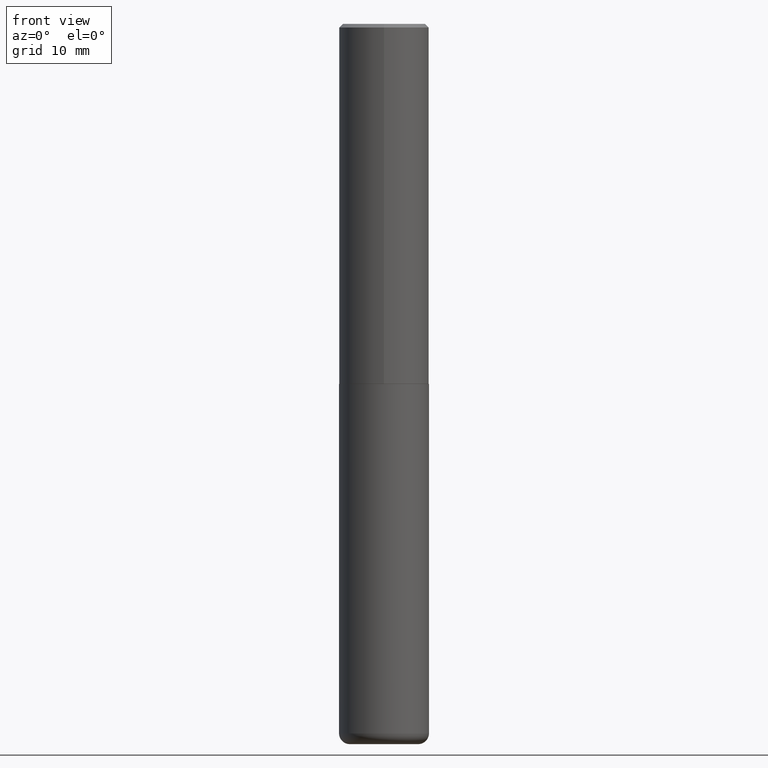
[diagram: clean part render]
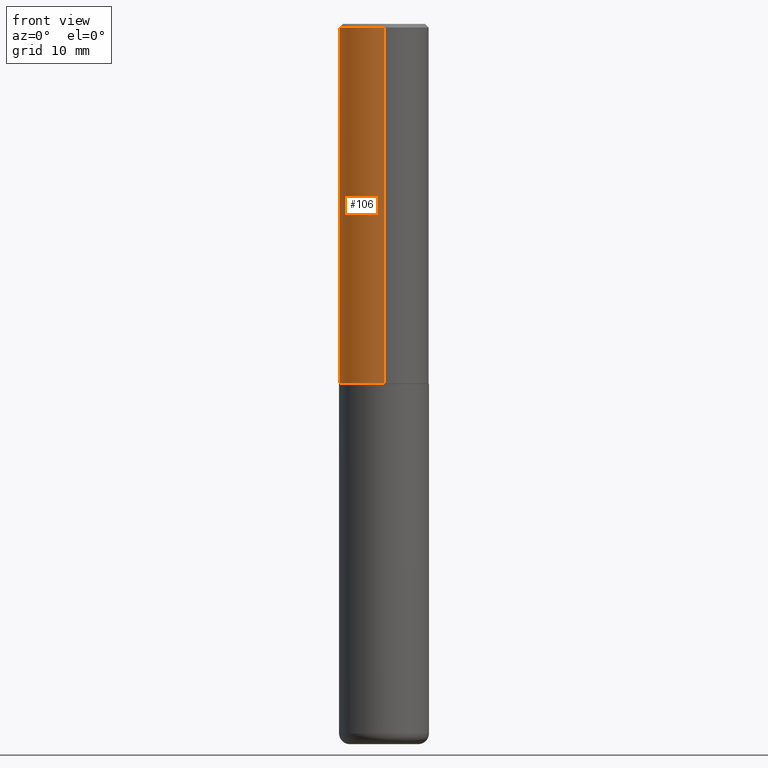
[diagram: same view with one face highlighted and labeled with its STEP entity id]
A machine part, front view. The second image highlights one B-rep face of the part: STEP entity #106.
In plain terms, the highlighted cylindrical surface (partial cylindrical patch) has radius 6.35 mm, axis along (-0, 0, 1).
Its self-contained STEP definition (entity closure, byte-faithful):
#3 = ORIENTED_EDGE ( 'NONE', *, *, #322, .T. ) ;
#9 = VECTOR ( 'NONE', #142, 39.37007874015748143 ) ;
#22 = VERTEX_POINT ( 'NONE', #145 ) ;
#24 = VECTOR ( 'NONE', #288, 39.37007874015748143 ) ;
#49 = EDGE_CURVE ( 'NONE', #90, #404, #268, .T. ) ;
#55 = CARTESIAN_POINT ( 'NONE',  ( 4.888157982744373443E-31, -6.986943265517335816E-17, -0.02000000000000009062 ) ) ;
#59 = CARTESIAN_POINT ( 'NONE',  ( 1.776356839400251254E-15, 0.2500000000000001110, -8.733679081896635319E-16 ) ) ;
#62 = LINE ( 'NONE', #59, #24 ) ;
#90 = VERTEX_POINT ( 'NONE', #192 ) ;
#96 = CYLINDRICAL_SURFACE ( 'NONE', #127, 0.2500000000000001110 ) ;
#105 = EDGE_LOOP ( 'NONE', ( #393, #3, #197, #120 ) ) ;
#106 = ADVANCED_FACE ( 'NONE', ( #160 ), #96, .T. ) ;
#120 = ORIENTED_EDGE ( 'NONE', *, *, #49, .F. ) ;
#121 = EDGE_CURVE ( 'NONE', #22, #90, #62, .T. ) ;
#127 = AXIS2_PLACEMENT_3D ( 'NONE', #225, #382, #260 ) ;
#142 = DIRECTION ( 'NONE',  ( -2.444078991372175563E-29, 3.493471632758652550E-15, 1.000000000000000000 ) ) ;
#145 = CARTESIAN_POINT ( 'NONE',  ( 1.776356839400276103E-15, 0.2499999999999932832, -1.999000000000000776 ) ) ;
#160 = FACE_OUTER_BOUND ( 'NONE', #105, .T. ) ;
#188 = DIRECTION ( 'NONE',  ( -6.982962677686265133E-15, -1.000000000000000000, 3.500180241882336472E-15 ) ) ;
#192 = CARTESIAN_POINT ( 'NONE',  ( 1.745740669421567269E-15, 0.2499999999999999722, -0.02000000000000096492 ) ) ;
#197 = ORIENTED_EDGE ( 'NONE', *, *, #248, .T. ) ;
#225 = CARTESIAN_POINT ( 'NONE',  ( 0.000000000000000000, 0.000000000000000000, 0.000000000000000000 ) ) ;
#230 = LINE ( 'NONE', #296, #9 ) ;
#233 = CARTESIAN_POINT ( 'NONE',  ( -1.745740669421519543E-15, -0.2500000000000072720, -1.998999999999999000 ) ) ;
#248 = EDGE_CURVE ( 'NONE', #297, #404, #230, .T. ) ;
#259 = DIRECTION ( 'NONE',  ( -2.444078991372175563E-29, 3.493471632758652550E-15, 1.000000000000000000 ) ) ;
#260 = DIRECTION ( 'NONE',  ( -6.982962677686266711E-15, -1.000000000000000000, 3.493471632758652550E-15 ) ) ;
#265 = DIRECTION ( 'NONE',  ( -2.444078991372175563E-29, 3.493471632758652550E-15, 1.000000000000000000 ) ) ;
#267 = CARTESIAN_POINT ( 'NONE',  ( 4.885713903752978284E-29, -6.983449793884546288E-15, -1.998999999999999888 ) ) ;
#268 = CIRCLE ( 'NONE', #386, 0.2500000000000000555 ) ;
#275 = CIRCLE ( 'NONE', #329, 0.2500000000000002776 ) ;
#288 = DIRECTION ( 'NONE',  ( -2.444078991372175563E-29, 3.493471632758652550E-15, 1.000000000000000000 ) ) ;
#296 = CARTESIAN_POINT ( 'NONE',  ( -1.745740669421567467E-15, -0.2500000000000001110, 8.733679081896635319E-16 ) ) ;
#297 = VERTEX_POINT ( 'NONE', #233 ) ;
#306 = CARTESIAN_POINT ( 'NONE',  ( -1.715124499442882496E-15, -0.2500000000000001110, -0.01999999999999921632 ) ) ;
#322 = EDGE_CURVE ( 'NONE', #22, #297, #275, .T. ) ;
#329 = AXIS2_PLACEMENT_3D ( 'NONE', #267, #265, #396 ) ;
#382 = DIRECTION ( 'NONE',  ( -2.444078991372175563E-29, 3.493471632758652550E-15, 1.000000000000000000 ) ) ;
#386 = AXIS2_PLACEMENT_3D ( 'NONE', #55, #259, #188 ) ;
#393 = ORIENTED_EDGE ( 'NONE', *, *, #121, .F. ) ;
#396 = DIRECTION ( 'NONE',  ( -6.982962677686265922E-15, -1.000000000000000000, 3.278217592397112312E-15 ) ) ;
#404 = VERTEX_POINT ( 'NONE', #306 ) ;